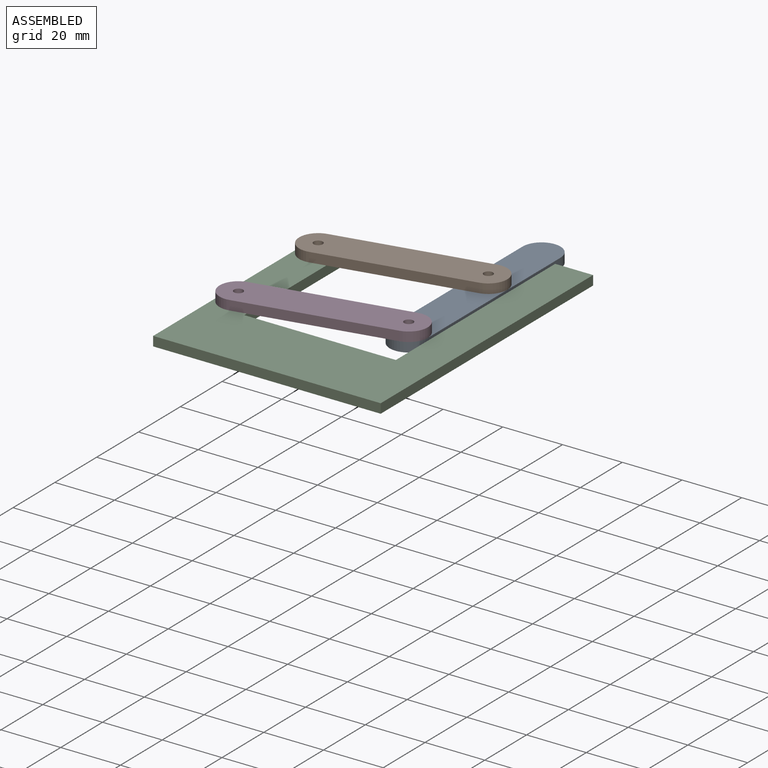
[diagram: assembled view]
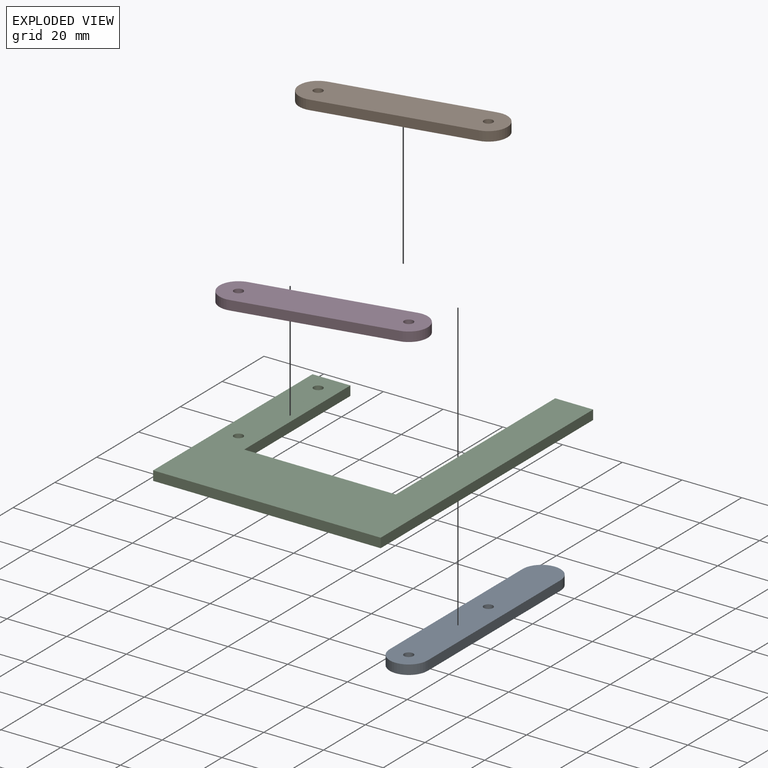
[diagram: exploded view]
GUIDED TOUR — MATED ASSEMBLY (Onshape document c333c3444c2cc427af93cdcc, AutoMate assembly c333c3444c2cc427af93cdcc_ad7e03ab07ae6dd0de4eb75f_eadd2d2faf6b9d4642b21603_default)

This assembly has 4 components, labeled P0..P3 below (a component is one placed occurrence of a part; the same part can appear more than once), held together by 4 mates. A mate is a constraint between two components; its type names the relative motion it leaves free:
  REVOLUTE — leaves rotation about the listed axis free (a hinge).
Axis/direction vectors are unit vectors and 'through' points are millimeter coordinates, both in the assembly's world frame.

MATES
  1. REVOLUTE "Revolute 1": P0 <-> P1, axis (0.000, 0.000, 1.000) through (30.09, -6.98, 2.16) mm
  2. REVOLUTE "Revolute 3": P1 <-> P2, axis (0.000, 0.000, -1.000) through (-19.63, -17.38, 2.16) mm
  3. REVOLUTE "Revolute 4": P2 <-> P3, axis (0.000, 0.000, 1.000) through (-19.63, -55.48, 2.16) mm
  4. REVOLUTE "Revolute 2": P3 <-> P0, axis (0.000, 0.000, -1.000) through (30.09, -45.08, 2.16) mm

ASSEMBLY ORDER
  1. P3 — the base component [order verified]
  2. P1 [order verified]
  3. P2 [order verified]
  4. P0 [order verified]
Order-tag legend:
  [order verified] — this step's position reverses a verified removal order: the component was checked to insert without passing through the ones already placed.

Of the 4 components, 4 carry the full construction recipe — the FeatureScript program that regenerates the part's solid from scratch; the rest are supplied as boundary geometry only.
Each toured component is shown spotlighted twice — in the assembled view, then in the exploded view, where a leader line traces a displaced component back to its assembled socket (saturated green if recipe-attached, orange if geometry-only; every other component desaturated gray) — followed by its recipe or geometry summary and the mates that hold it.
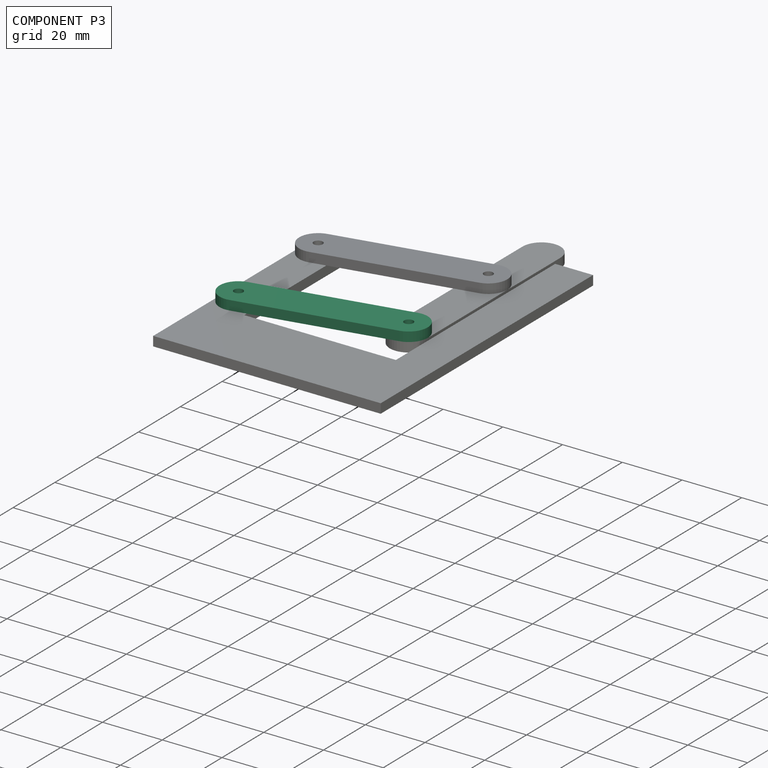
[diagram: component P3 — assembled]
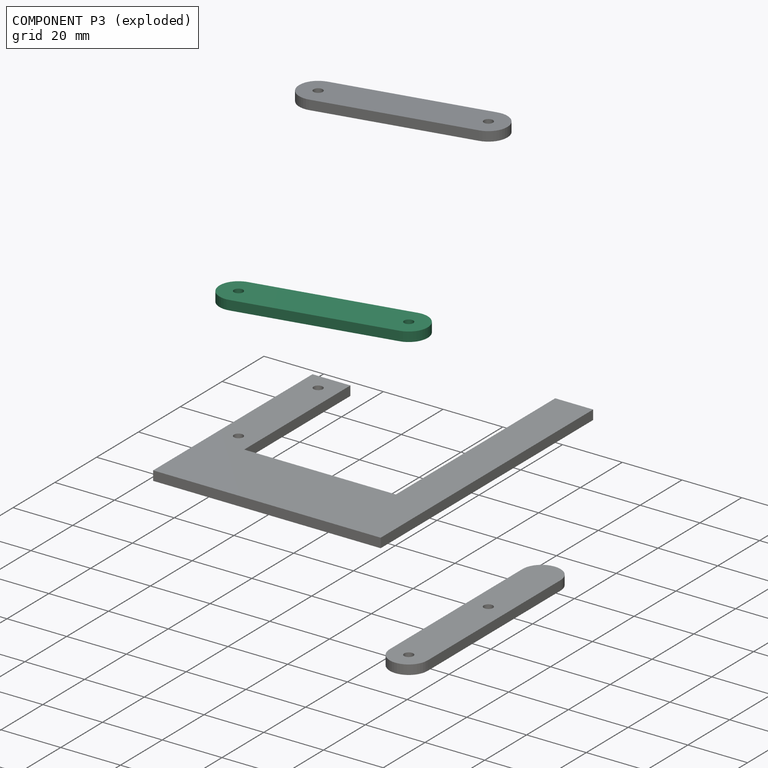
[diagram: component P3 — exploded]
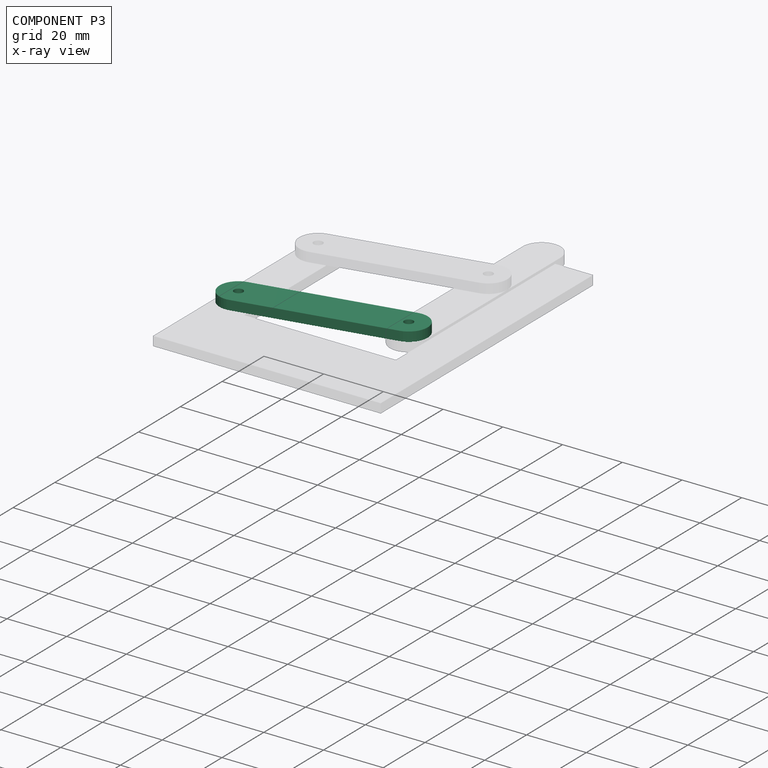
[diagram: component P3 — x-ray view]
COMPONENT P3 — same part as P1 (CADFS 00525413); its construction recipe is shown at P1.
Held by: REVOLUTE mate "Revolute 4" to P2; REVOLUTE mate "Revolute 2" to P0.
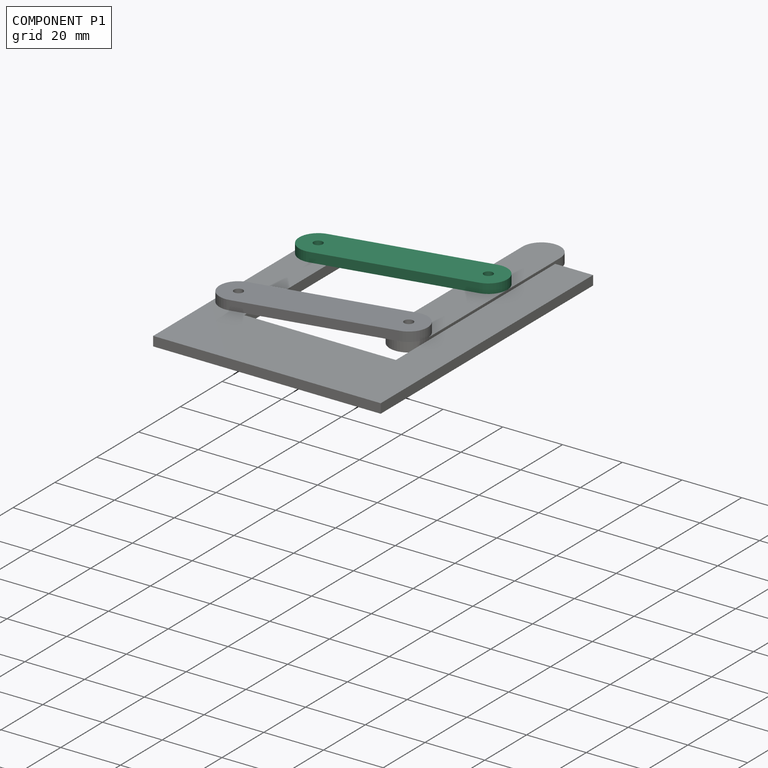
[diagram: component P1 — assembled]
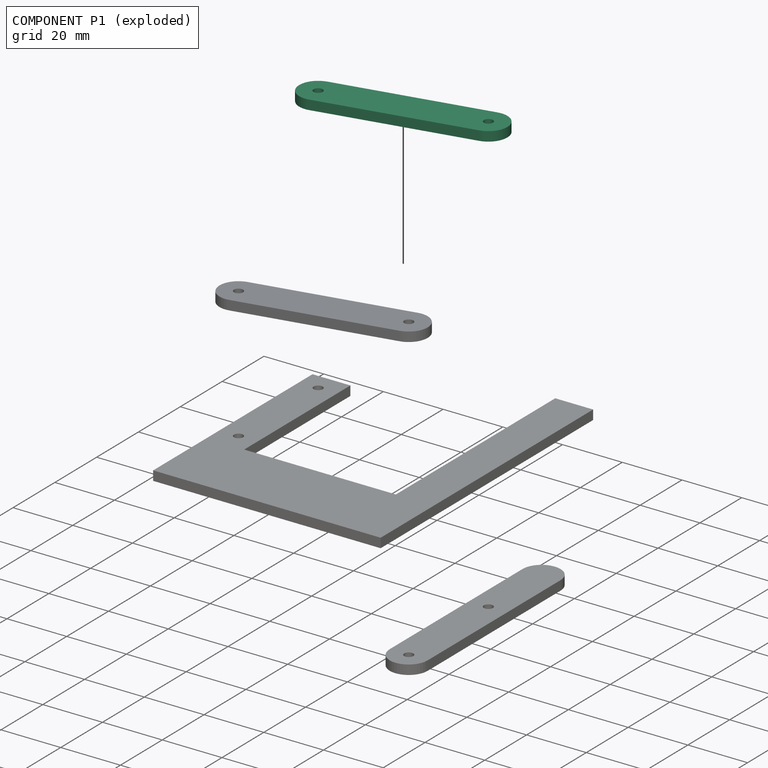
[diagram: component P1 — exploded]
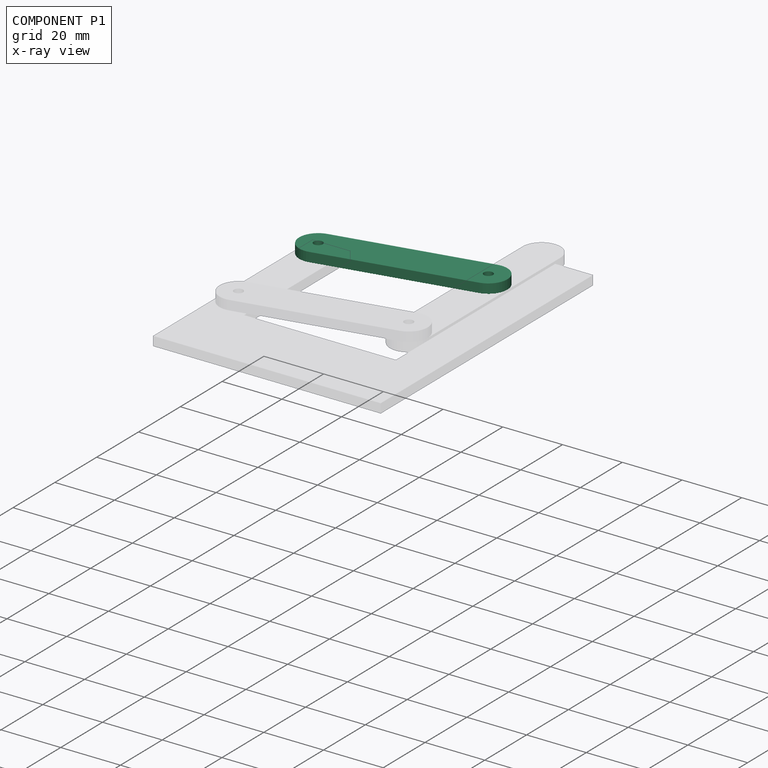
[diagram: component P1 — x-ray view]
COMPONENT P1 — recipe-attached (CADFS 00525413, mesh-verified: the recipe's output STEP matches this component's geometry to below the mesh-comparison resolution (tessellation chordal tolerance ~0.0972 mm)).
Held by: REVOLUTE mate "Revolute 1" to P0; REVOLUTE mate "Revolute 3" to P2.
Construction recipe (FeatureScript — the CAD program that rebuilds this solid; sketch coordinates are in the units given by the * unit suffixes, e.g. mm):

FeatureScript 1511;
import(path : "onshape/std/geometry.fs", version : "1511.0");
import(path : "onshape/std/common.fs", version : "1511.0");
const mm = millimeter;
const VERTEX = EntityType.VERTEX;
const EDGE = EntityType.EDGE;
const FACE = EntityType.FACE;
const BODY = EntityType.BODY;
function v(x, y){return vector(x, y);}
function OD(order){return orderDisambiguation(order);}
function OSD(set){return originalSetDisambiguation(set);}
function TD(topology){return topologyDisambiguation(topology);}
function TDD(query){return trueDependencyDisambiguation(query);}
function sQuery(a, b, c) {return sketchEntityQuery(a, b, c);}

annotation { "Feature Type Name" : "Feature", "Feature Type Description" : "" }
export const myFeature = defineFeature(function(context is Context, id is Id, definition is map)
    precondition{}
    {
        {
            var Q0;
            Q0=qCreatedBy(makeId("Top.planeOp"),FACE);
            var sketch = newSketch(context, id + "F0", { "sketchPlane" : qUnion([Q0])});
            skLineSegment(sketch, "E0.bottom", {"start": v(0, 31.75) * mm, "end": v(0, 31.75) * mm});
            skLineSegment(sketch, "E0.top", {"start": v(0, -31.75) * mm, "end": v(0, -31.75) * mm});
            skLineSegment(sketch, "E0.left", {"start": v(6.35, 25.4) * mm, "end": v(6.35, -25.4) * mm});
            skLineSegment(sketch, "E0.right", {"start": v(-6.35, 25.4) * mm, "end": v(-6.35, -25.4) * mm});
            skPoint(sketch, "E0.middle", {"position": v(0, 0) * mm});
            skCircle(sketch, "E1", {"center": v(0, -25.4) * mm, "radius": 1.52 * mm});
            skPoint(sketch, "E1.centerSnap0", {"position": v(0, -31.75) * mm});
            skCircle(sketch, "E2.MirrorC", {"center": v(0, 25.4) * mm, "radius": 1.52 * mm});
            skPoint(sketch, "E3.visualSharp", {"position": v(6.35, 31.75) * mm});
            skArc(sketch, "E3.filletArc", {"start": v(6.35, 25.4) * mm, "mid": v(4.5, 29.9) * mm, "end": v(0, 31.75) * mm});
            skPoint(sketch, "E4.visualSharp", {"position": v(-6.35, 31.75) * mm});
            skArc(sketch, "E4.filletArc", {"start": v(0, 31.75) * mm, "mid": v(-4.5, 29.9) * mm, "end": v(-6.35, 25.4) * mm});
            skPoint(sketch, "E5.visualSharp", {"position": v(-6.35, -31.75) * mm});
            skArc(sketch, "E5.filletArc", {"start": v(-6.35, -25.4) * mm, "mid": v(-4.5, -29.9) * mm, "end": v(0, -31.75) * mm});
            skPoint(sketch, "E6.visualSharp", {"position": v(6.35, -31.75) * mm});
            skArc(sketch, "E6.filletArc", {"start": v(0, -31.75) * mm, "mid": v(4.5, -29.9) * mm, "end": v(6.35, -25.4) * mm});
            skSolve(sketch);
        }
        {
            var Q0;
            Q0=makeQuery(id+"F0.imprint","IMPRINT",FACE,{"disambiguationData":[TD([[makeQuery(id+"F0.imprint","IMPRINT",EDGE,{"derivedFrom":sQuery(id+"F0.wireOp",EDGE,"E0.left")}),-1.0]])]});
            extrude(context, id + "F1", {"entities" : qUnion([Q0]), "depth" : 3.17 * mm, "offsetDistance" : 25.4 * mm});
        }
    });
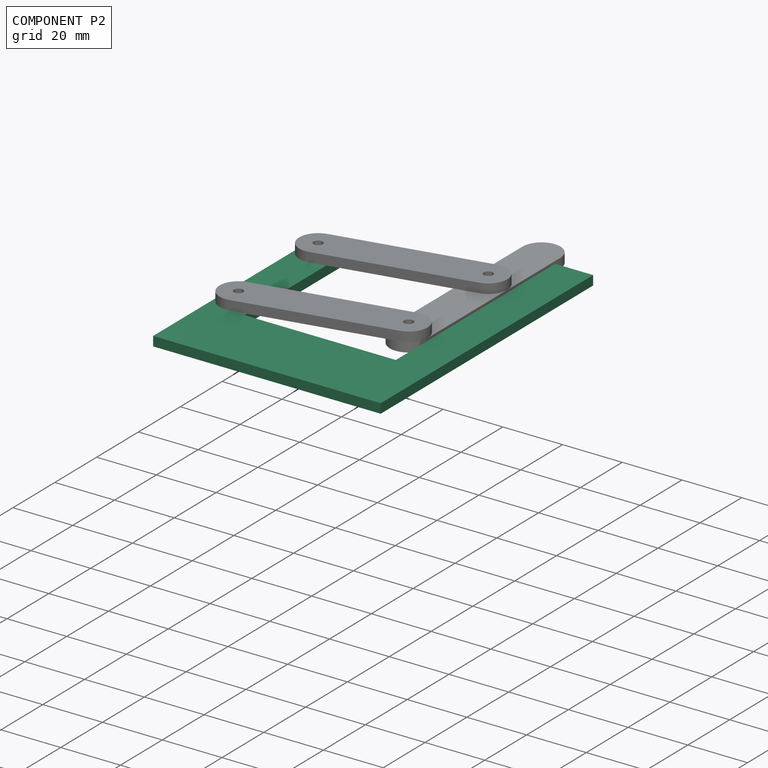
[diagram: component P2 — assembled]
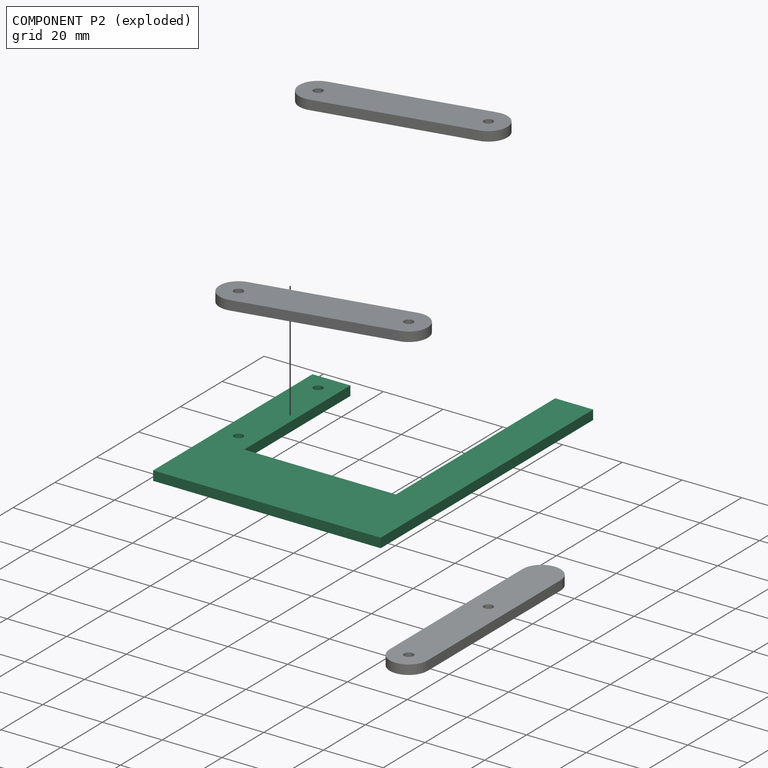
[diagram: component P2 — exploded]
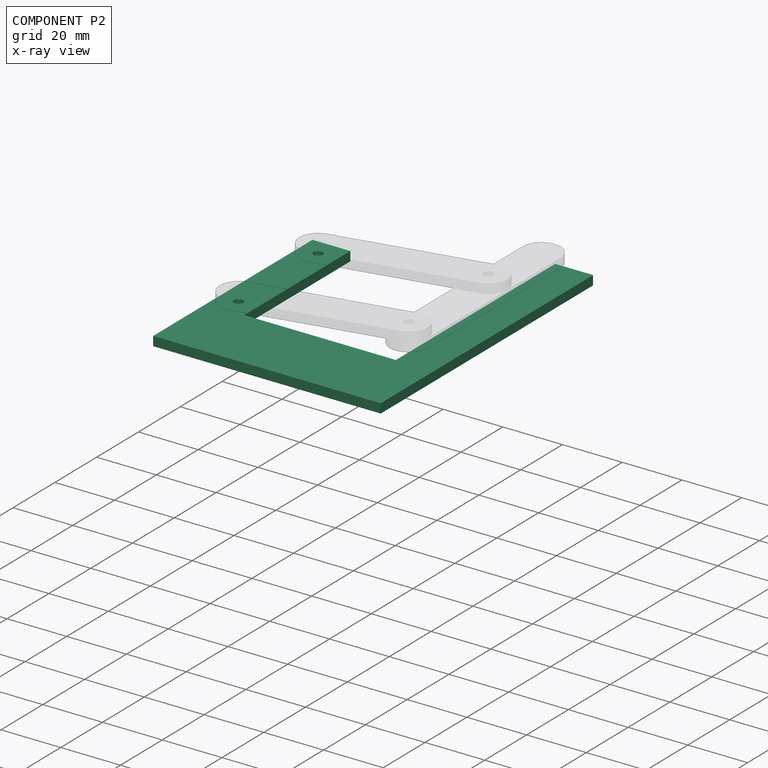
[diagram: component P2 — x-ray view]
COMPONENT P2 — recipe-attached (CADFS 00525415, mesh-verified: the recipe's output STEP matches this component's geometry to below the mesh-comparison resolution (tessellation chordal tolerance ~0.191 mm)).
Held by: REVOLUTE mate "Revolute 3" to P1; REVOLUTE mate "Revolute 4" to P3.
Construction recipe (FeatureScript — the CAD program that rebuilds this solid; sketch coordinates are in the units given by the * unit suffixes, e.g. mm):

FeatureScript 1511;
import(path : "onshape/std/geometry.fs", version : "1511.0");
import(path : "onshape/std/common.fs", version : "1511.0");
const mm = millimeter;
const VERTEX = EntityType.VERTEX;
const EDGE = EntityType.EDGE;
const FACE = EntityType.FACE;
const BODY = EntityType.BODY;
function v(x, y){return vector(x, y);}
function OD(order){return orderDisambiguation(order);}
function OSD(set){return originalSetDisambiguation(set);}
function TD(topology){return topologyDisambiguation(topology);}
function TDD(query){return trueDependencyDisambiguation(query);}
function sQuery(a, b, c) {return sketchEntityQuery(a, b, c);}

annotation { "Feature Type Name" : "Feature", "Feature Type Description" : "" }
export const myFeature = defineFeature(function(context is Context, id is Id, definition is map)
    precondition{}
    {
        {
            var Q0;
            Q0=qCreatedBy(makeId("Top.planeOp"),FACE);
            var sketch = newSketch(context, id + "F0", { "sketchPlane" : qUnion([Q0])});
            skLineSegment(sketch, "E0.bottom", {"start": v(25.4, 12.7) * mm, "end": v(-25.4, 12.7) * mm});
            skLineSegment(sketch, "E0.top", {"start": v(25.4, -12.7) * mm, "end": v(-25.4, -12.7) * mm});
            skLineSegment(sketch, "E0.left", {"start": v(25.4, 12.7) * mm, "end": v(25.4, -12.7) * mm});
            skLineSegment(sketch, "E0.right", {"start": v(-25.4, 12.7) * mm, "end": v(-25.4, -12.7) * mm});
            skPoint(sketch, "E0.middle", {"position": v(0, 0) * mm});
            skLineSegment(sketch, "E1.bottom", {"start": v(-25.4, -12.7) * mm, "end": v(-38.1, -12.7) * mm});
            skLineSegment(sketch, "E1.top", {"start": v(-25.4, 63.5) * mm, "end": v(-38.1, 63.5) * mm});
            skLineSegment(sketch, "E1.left", {"start": v(-25.4, -12.7) * mm, "end": v(-25.4, 63.5) * mm});
            skLineSegment(sketch, "E1.right", {"start": v(-38.1, -12.7) * mm, "end": v(-38.1, 63.5) * mm});
            skLineSegment(sketch, "E2.bottom", {"start": v(25.4, -12.7) * mm, "end": v(38.1, -12.7) * mm});
            skLineSegment(sketch, "E2.top", {"start": v(25.4, 88.9) * mm, "end": v(38.1, 88.9) * mm});
            skLineSegment(sketch, "E2.left", {"start": v(25.4, -12.7) * mm, "end": v(25.4, 88.9) * mm});
            skLineSegment(sketch, "E2.right", {"start": v(38.1, -12.7) * mm, "end": v(38.1, 88.9) * mm});
            skCircle(sketch, "E3", {"center": v(-31.75, 19.05) * mm, "radius": 1.52 * mm});
            skPoint(sketch, "E3.centerSnap0", {"position": v(-31.75, -12.7) * mm});
            skCircle(sketch, "E4", {"center": v(-31.75, 57.15) * mm, "radius": 1.52 * mm});
            skSolve(sketch);
        }
        {
            var Q0;
            {var subQ0=sQuery(id+"F0.wireOp",EDGE,"E0.bottom");Q0=makeQuery(id+"F0.imprint","IMPRINT",FACE,{"disambiguationData":[TD([[makeQuery(id+"F0.imprint","IMPRINT",EDGE,{"derivedFrom":subQ0}),1.0]])]});}
            var Q1;
            {var subQ3=sQuery(id+"F0.wireOp",EDGE,"E1.bottom");Q1=makeQuery(id+"F0.imprint","IMPRINT",FACE,{"disambiguationData":[TD([[makeQuery(id+"F0.imprint","IMPRINT",EDGE,{"derivedFrom":subQ3}),-1.0]])]});}
            var Q2;
            {var subQ3=sQuery(id+"F0.wireOp",EDGE,"E2.bottom");Q2=makeQuery(id+"F0.imprint","IMPRINT",FACE,{"disambiguationData":[TD([[makeQuery(id+"F0.imprint","IMPRINT",EDGE,{"derivedFrom":subQ3}),1.0]])]});}
            extrude(context, id + "F1", {"entities" : qUnion([Q0, Q1, Q2]), "depth" : 3.17 * mm, "offsetDistance" : 25.4 * mm});
        }
    });
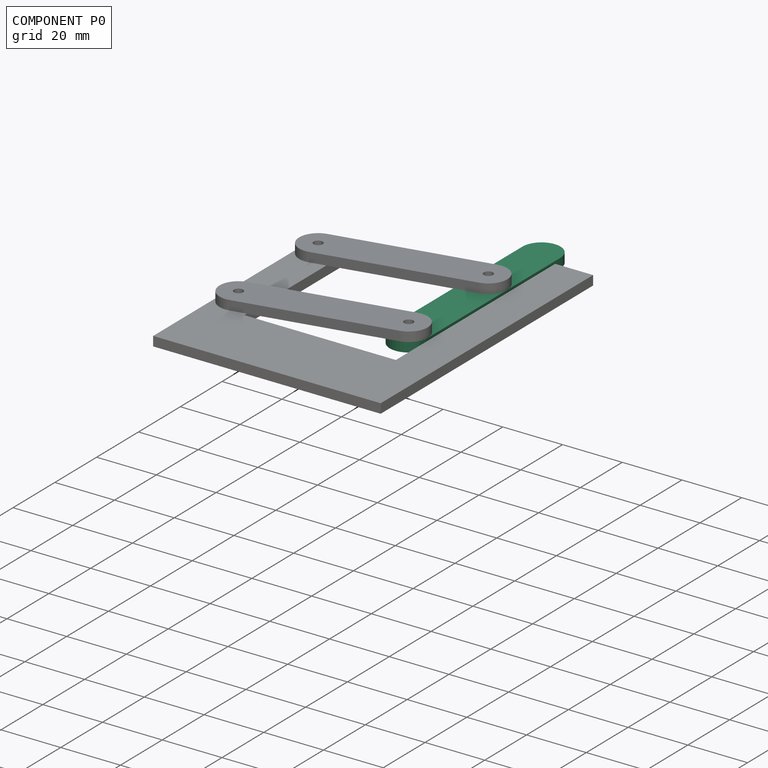
[diagram: component P0 — assembled]
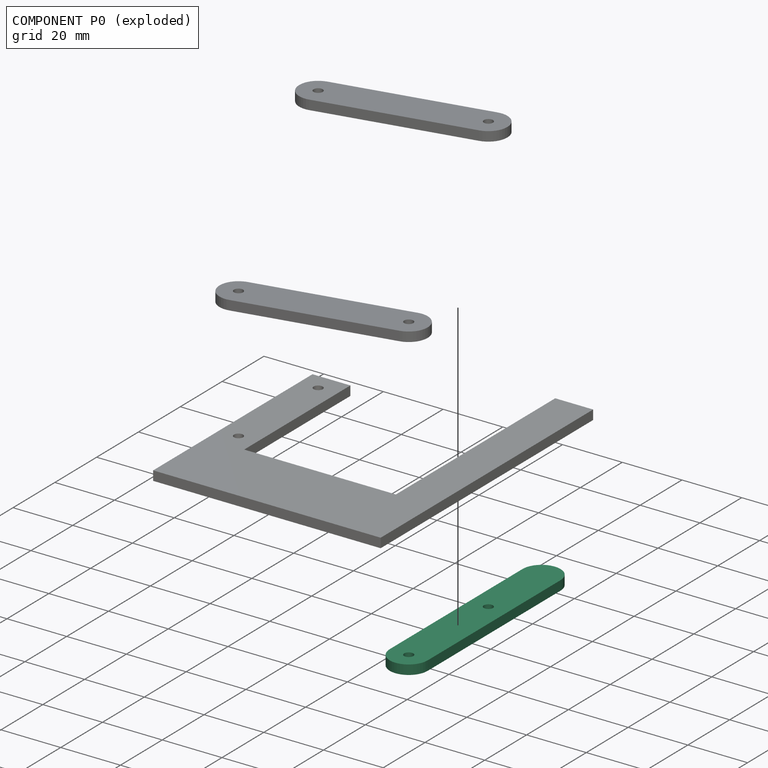
[diagram: component P0 — exploded]
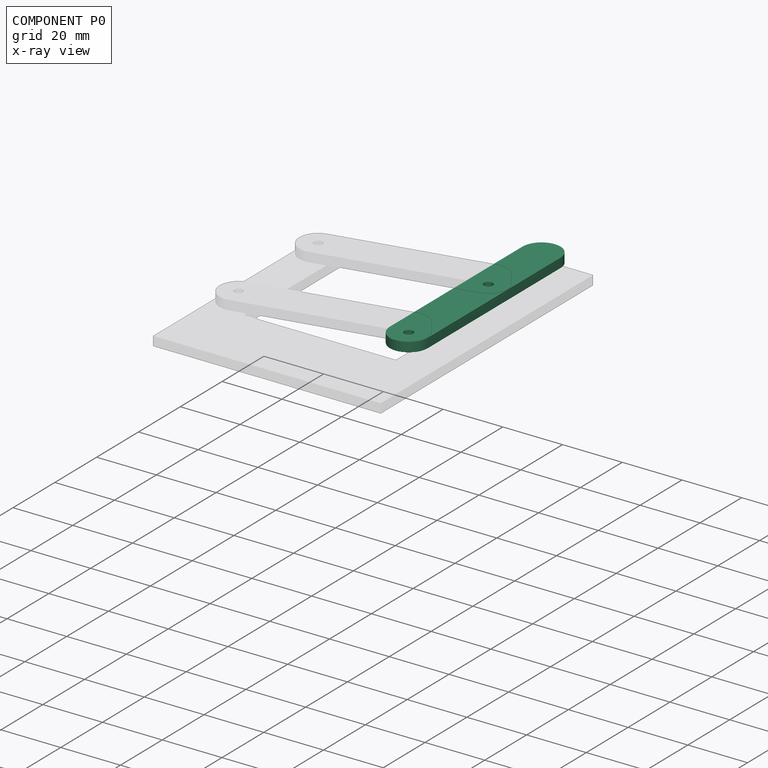
[diagram: component P0 — x-ray view]
COMPONENT P0 — recipe-attached (CADFS 00525414, mesh-verified: the recipe's output STEP matches this component's geometry to below the mesh-comparison resolution (tessellation chordal tolerance ~0.116 mm)).
Held by: REVOLUTE mate "Revolute 1" to P1; REVOLUTE mate "Revolute 2" to P3.
Construction recipe (FeatureScript — the CAD program that rebuilds this solid; sketch coordinates are in the units given by the * unit suffixes, e.g. mm):

FeatureScript 1511;
import(path : "onshape/std/geometry.fs", version : "1511.0");
import(path : "onshape/std/common.fs", version : "1511.0");
const mm = millimeter;
const VERTEX = EntityType.VERTEX;
const EDGE = EntityType.EDGE;
const FACE = EntityType.FACE;
const BODY = EntityType.BODY;
function v(x, y){return vector(x, y);}
function OD(order){return orderDisambiguation(order);}
function OSD(set){return originalSetDisambiguation(set);}
function TD(topology){return topologyDisambiguation(topology);}
function TDD(query){return trueDependencyDisambiguation(query);}
function sQuery(a, b, c) {return sketchEntityQuery(a, b, c);}

annotation { "Feature Type Name" : "Feature", "Feature Type Description" : "" }
export const myFeature = defineFeature(function(context is Context, id is Id, definition is map)
    precondition{}
    {
        {
            var Q0;
            Q0=qCreatedBy(makeId("Top.planeOp"),FACE);
            var sketch = newSketch(context, id + "F0", { "sketchPlane" : qUnion([Q0])});
            skLineSegment(sketch, "E0.bottom", {"start": v(0, 25.4) * mm, "end": v(0, 25.4) * mm});
            skLineSegment(sketch, "E0.top", {"start": v(0, -25.4) * mm, "end": v(0, -25.4) * mm});
            skLineSegment(sketch, "E0.left", {"start": v(6.35, 25.4) * mm, "end": v(6.35, -19.05) * mm});
            skLineSegment(sketch, "E0.right", {"start": v(-6.35, 25.4) * mm, "end": v(-6.35, -19.05) * mm});
            skPoint(sketch, "E0.middle", {"position": v(0, 0) * mm});
            skCircle(sketch, "E1", {"center": v(0, -19.05) * mm, "radius": 1.52 * mm});
            skPoint(sketch, "E1.centerSnap0", {"position": v(0, -25.4) * mm});
            skCircle(sketch, "E2.MirrorC", {"center": v(0, 19.05) * mm, "radius": 1.52 * mm});
            skPoint(sketch, "E3.visualSharp", {"position": v(-6.35, 25.4) * mm});
            skPoint(sketch, "E4.visualSharp", {"position": v(6.35, 25.4) * mm});
            skPoint(sketch, "E5.visualSharp", {"position": v(6.35, -25.4) * mm});
            skArc(sketch, "E5.filletArc", {"start": v(0, -25.4) * mm, "mid": v(4.5, -23.54) * mm, "end": v(6.35, -19.05) * mm});
            skPoint(sketch, "E6.visualSharp", {"position": v(-6.35, -25.4) * mm});
            skArc(sketch, "E6.filletArc", {"start": v(-6.35, -19.05) * mm, "mid": v(-4.5, -23.54) * mm, "end": v(0, -25.4) * mm});
            skLineSegment(sketch, "E7.bottom", {"start": v(-6.35, 25.4) * mm, "end": v(6.35, 25.4) * mm});
            skLineSegment(sketch, "E7.top", {"start": v(0, 50.8) * mm, "end": v(0, 50.8) * mm});
            skLineSegment(sketch, "E7.left", {"start": v(-6.35, 25.4) * mm, "end": v(-6.35, 44.45) * mm});
            skLineSegment(sketch, "E7.right", {"start": v(6.35, 25.4) * mm, "end": v(6.35, 44.45) * mm});
            skPoint(sketch, "E8.visualSharp", {"position": v(-6.35, 50.8) * mm});
            skArc(sketch, "E8.filletArc", {"start": v(0, 50.8) * mm, "mid": v(-4.5, 48.94) * mm, "end": v(-6.35, 44.45) * mm});
            skPoint(sketch, "E9.visualSharp", {"position": v(6.35, 50.8) * mm});
            skArc(sketch, "E9.filletArc", {"start": v(6.35, 44.45) * mm, "mid": v(4.5, 48.94) * mm, "end": v(0, 50.8) * mm});
            skSolve(sketch);
        }
        {
            var Q0;
            Q0=makeQuery(id+"F0.imprint","IMPRINT",FACE,{"disambiguationData":[TD([[makeQuery(id+"F0.imprint","IMPRINT",EDGE,{"derivedFrom":sQuery(id+"F0.wireOp",EDGE,"E7.bottom")}),1.0]])]});
            var Q1;
            Q1=makeQuery(id+"F0.imprint","IMPRINT",FACE,{"disambiguationData":[TD([[makeQuery(id+"F0.imprint","IMPRINT",EDGE,{"derivedFrom":sQuery(id+"F0.wireOp",EDGE,"E0.left")}),-1.0]])]});
            extrude(context, id + "F1", {"entities" : qUnion([Q0, Q1]), "depth" : 3.17 * mm, "offsetDistance" : 25.4 * mm});
        }
    });
PROVENANCE & LICENSES
Assembly (occurrences, transforms, mates, per-part STEP geometry): AutoMate dataset, Zenodo record 7776208, CC0.
Construction recipes: CADFS (HuggingFace VladPyatov/CADFS, CC-BY-4.0, layered over the ABC dataset), FeatureScript reconstruction programs keyed by ABC model id.
Join: ABC meta listings map ABC model id -> Onshape documentId; within a shared document, parts are matched by geometric signature (bounding-box dims + volume at 0.1% relative tolerance, exact B-rep face/solid counts).
Verification: 4 of this assembly's 4 components carry a recipe attachment, and every attachment is mesh-verified: the CADFS STEP and the AutoMate member STEP were compared as meshes in their shared local frame (symmetric sampled-point-to-mesh distance); worst across the 4 attachments: below the mesh-comparison resolution (tessellation chordal tolerance ~0.191 mm) on a 127 mm part.
Renders: orthographic iso camera (az 35 / el 25); the floor grid conveys scale (grid pitch printed in each image; no ruler). In the exploded view each component is displaced by its stored offset vector: the offsets alone carry the explosion direction (mate normal/axis signs are not orientation cues and do not encode it), and separation distances are assigned per mate-chain, not proportionally to assembly-order depth.
